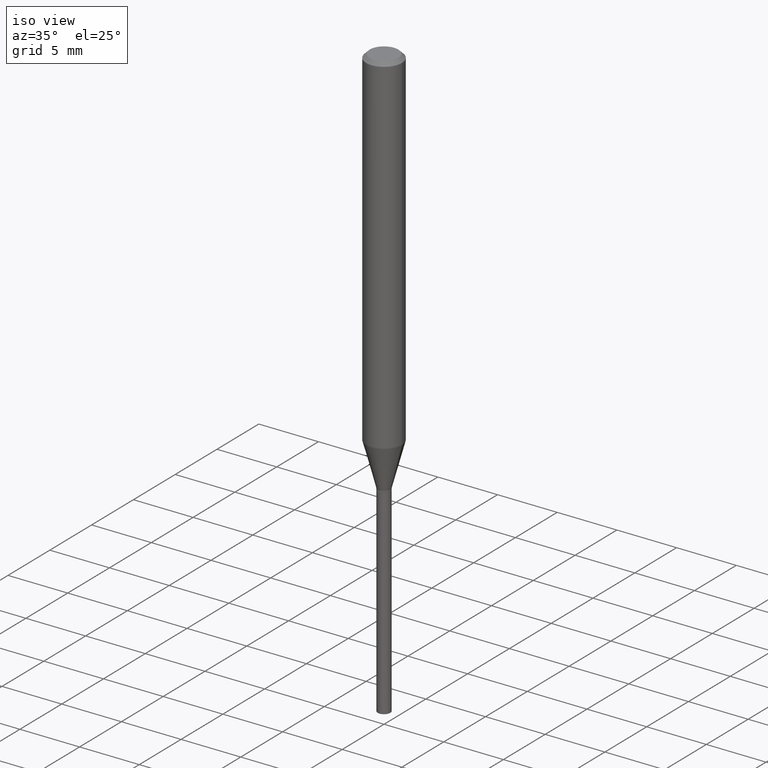
[diagram: clean part render]
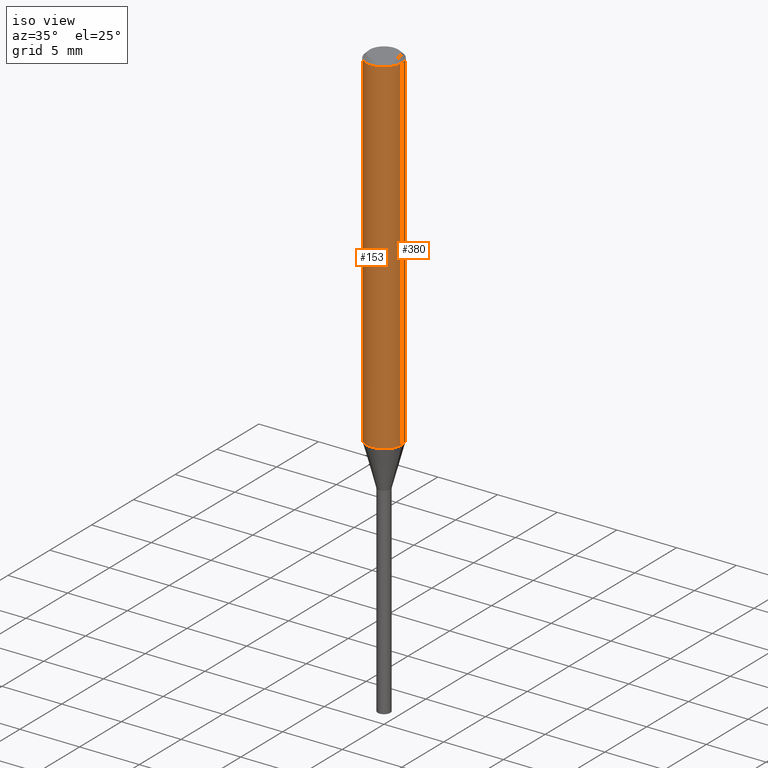
[diagram: same view with one multi-face feature highlighted, each face labeled with its STEP entity id]
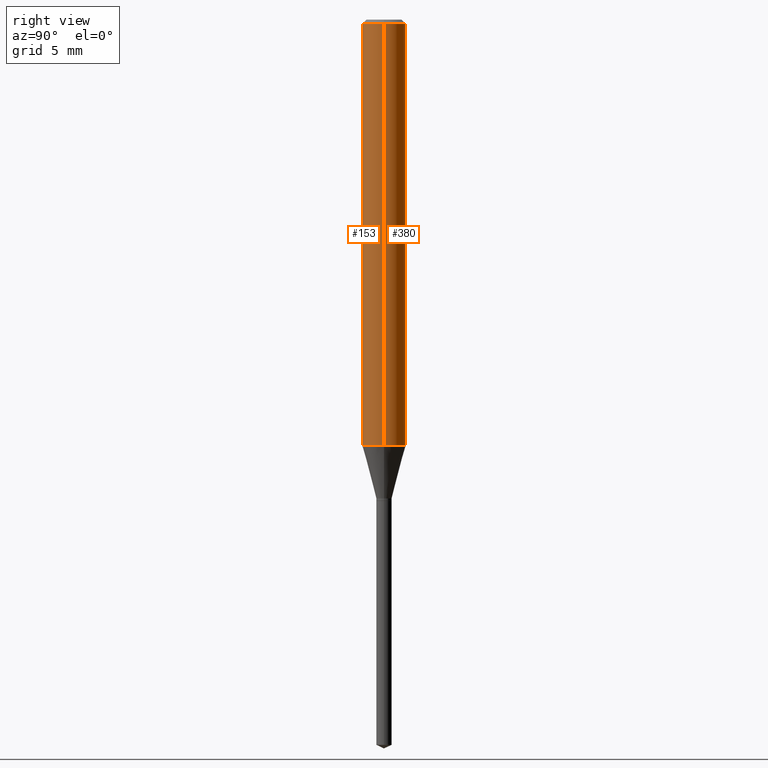
[diagram: same view with one multi-face feature highlighted, each face labeled with its STEP entity id]
A machine part, iso view. The highlighted faces form ONE feature: a constant-radius fillet chain: 2 tangent blend faces with common blend radius 1.4999 mm. The faces share edges in the B-rep.
A second angle (right view) of the same feature is appended — it is thin or edge-on in the first view.
Their STEP definitions:
[1] entity #380 (Cylinder):
#5 = AXIS2_PLACEMENT_3D ( 'NONE', #481, #12, #410 ) ;
#12 = DIRECTION ( 'NONE',  ( -2.445468806185136597E-29, 3.491481338843145583E-15, 1.000000000000000000 ) ) ;
#24 = CARTESIAN_POINT ( 'NONE',  ( -0.05905000000000006771, 4.195754854663396409E-16, -2.904631170795525045E-30 ) ) ;
#29 = VECTOR ( 'NONE', #340, 39.37007874015748143 ) ;
#32 = CIRCLE ( 'NONE', #309, 0.05904999999999999832 ) ;
#60 = CIRCLE ( 'NONE', #5, 0.05905000000000014404 ) ;
#81 = EDGE_CURVE ( 'NONE', #90, #438, #32, .T. ) ;
#90 = VERTEX_POINT ( 'NONE', #471 ) ;
#94 = EDGE_LOOP ( 'NONE', ( #374, #482, #128, #207 ) ) ;
#95 = DIRECTION ( 'NONE',  ( -2.445468806185136597E-29, 3.491481338843145583E-15, 1.000000000000000000 ) ) ;
#125 = DIRECTION ( 'NONE',  ( 1.000000000000000000, -6.982962677686266711E-15, 0.000000000000000000 ) ) ;
#128 = ORIENTED_EDGE ( 'NONE', *, *, #81, .F. ) ;
#140 = VERTEX_POINT ( 'NONE', #235 ) ;
#149 = DIRECTION ( 'NONE',  ( -2.445468806185136877E-29, 3.491481338843145188E-15, 1.000000000000000000 ) ) ;
#182 = EDGE_CURVE ( 'NONE', #140, #90, #244, .T. ) ;
#207 = ORIENTED_EDGE ( 'NONE', *, *, #182, .F. ) ;
#211 = EDGE_CURVE ( 'NONE', #363, #438, #426, .T. ) ;
#228 = FACE_OUTER_BOUND ( 'NONE', #94, .T. ) ;
#235 = CARTESIAN_POINT ( 'NONE',  ( 0.05905000000000015098, -4.428208245101720208E-15, -1.150189248989355040 ) ) ;
#241 = VECTOR ( 'NONE', #149, 39.37007874015748143 ) ;
#244 = LINE ( 'NONE', #389, #29 ) ;
#245 = DIRECTION ( 'NONE',  ( 1.000000000000000000, -6.982962677686266711E-15, 4.876176775795936353E-29 ) ) ;
#258 = CARTESIAN_POINT ( 'NONE',  ( 2.888098660104663328E-31, -4.123439461173779030E-17, -0.01181000000000006871 ) ) ;
#295 = CYLINDRICAL_SURFACE ( 'NONE', #401, 0.05905000000000006771 ) ;
#300 = DIRECTION ( 'NONE',  ( -2.445468806185136597E-29, 3.491481338843145583E-15, 1.000000000000000000 ) ) ;
#309 = AXIS2_PLACEMENT_3D ( 'NONE', #258, #300, #125 ) ;
#315 = CARTESIAN_POINT ( 'NONE',  ( -0.05905000000000015098, -3.596288813518005006E-15, -1.150189248989355040 ) ) ;
#340 = DIRECTION ( 'NONE',  ( -2.445468806185136877E-29, 3.491481338843145188E-15, 1.000000000000000000 ) ) ;
#363 = VERTEX_POINT ( 'NONE', #315 ) ;
#367 = EDGE_CURVE ( 'NONE', #140, #363, #60, .T. ) ;
#374 = ORIENTED_EDGE ( 'NONE', *, *, #367, .T. ) ;
#380 = ADVANCED_FACE ( 'NONE', ( #228 ), #295, .T. ) ;
#389 = CARTESIAN_POINT ( 'NONE',  ( 0.05905000000000006771, -4.123439461173745257E-16, 2.879382386107503723E-30 ) ) ;
#401 = AXIS2_PLACEMENT_3D ( 'NONE', #485, #95, #245 ) ;
#410 = DIRECTION ( 'NONE',  ( 1.000000000000000000, -6.982962677686272233E-15, 0.000000000000000000 ) ) ;
#426 = LINE ( 'NONE', #24, #241 ) ;
#438 = VERTEX_POINT ( 'NONE', #445 ) ;
#445 = CARTESIAN_POINT ( 'NONE',  ( -0.05904999999999999832, -1.608973861331701029E-15, -0.01181000000000006871 ) ) ;
#471 = CARTESIAN_POINT ( 'NONE',  ( 0.05904999999999999832, -4.535783407291118600E-16, -0.01181000000000006871 ) ) ;
#481 = CARTESIAN_POINT ( 'NONE',  ( 2.812751929612976794E-29, -4.015864298984345288E-15, -1.150189248989355040 ) ) ;
#482 = ORIENTED_EDGE ( 'NONE', *, *, #211, .T. ) ;
#485 = CARTESIAN_POINT ( 'NONE',  ( 0.000000000000000000, 0.000000000000000000, 0.000000000000000000 ) ) ;
[2] entity #153 (Cylinder):
#7 = DIRECTION ( 'NONE',  ( 1.000000000000000000, -6.982962677686266711E-15, 0.000000000000000000 ) ) ;
#8 = DIRECTION ( 'NONE',  ( 1.000000000000000000, -6.982962677686266711E-15, 4.876176775795936353E-29 ) ) ;
#10 = CARTESIAN_POINT ( 'NONE',  ( 2.888098660104663328E-31, -4.123439461173779030E-17, -0.01181000000000006871 ) ) ;
#24 = CARTESIAN_POINT ( 'NONE',  ( -0.05905000000000006771, 4.195754854663396409E-16, -2.904631170795525045E-30 ) ) ;
#29 = VECTOR ( 'NONE', #340, 39.37007874015748143 ) ;
#43 = CYLINDRICAL_SURFACE ( 'NONE', #77, 0.05905000000000006771 ) ;
#46 = ORIENTED_EDGE ( 'NONE', *, *, #224, .F. ) ;
#77 = AXIS2_PLACEMENT_3D ( 'NONE', #344, #195, #8 ) ;
#90 = VERTEX_POINT ( 'NONE', #471 ) ;
#91 = FACE_OUTER_BOUND ( 'NONE', #352, .T. ) ;
#101 = EDGE_CURVE ( 'NONE', #363, #140, #338, .T. ) ;
#140 = VERTEX_POINT ( 'NONE', #235 ) ;
#149 = DIRECTION ( 'NONE',  ( -2.445468806185136877E-29, 3.491481338843145188E-15, 1.000000000000000000 ) ) ;
#153 = ADVANCED_FACE ( 'NONE', ( #91 ), #43, .T. ) ;
#156 = DIRECTION ( 'NONE',  ( -2.445468806185136597E-29, 3.491481338843145583E-15, 1.000000000000000000 ) ) ;
#167 = AXIS2_PLACEMENT_3D ( 'NONE', #206, #469, #463 ) ;
#172 = ORIENTED_EDGE ( 'NONE', *, *, #182, .T. ) ;
#182 = EDGE_CURVE ( 'NONE', #140, #90, #244, .T. ) ;
#195 = DIRECTION ( 'NONE',  ( -2.445468806185136597E-29, 3.491481338843145583E-15, 1.000000000000000000 ) ) ;
#206 = CARTESIAN_POINT ( 'NONE',  ( 2.812751929612976794E-29, -4.015864298984345288E-15, -1.150189248989355040 ) ) ;
#211 = EDGE_CURVE ( 'NONE', #363, #438, #426, .T. ) ;
#224 = EDGE_CURVE ( 'NONE', #438, #90, #339, .T. ) ;
#235 = CARTESIAN_POINT ( 'NONE',  ( 0.05905000000000015098, -4.428208245101720208E-15, -1.150189248989355040 ) ) ;
#241 = VECTOR ( 'NONE', #149, 39.37007874015748143 ) ;
#244 = LINE ( 'NONE', #389, #29 ) ;
#288 = AXIS2_PLACEMENT_3D ( 'NONE', #10, #156, #7 ) ;
#315 = CARTESIAN_POINT ( 'NONE',  ( -0.05905000000000015098, -3.596288813518005006E-15, -1.150189248989355040 ) ) ;
#338 = CIRCLE ( 'NONE', #167, 0.05905000000000014404 ) ;
#339 = CIRCLE ( 'NONE', #288, 0.05904999999999999832 ) ;
#340 = DIRECTION ( 'NONE',  ( -2.445468806185136877E-29, 3.491481338843145188E-15, 1.000000000000000000 ) ) ;
#344 = CARTESIAN_POINT ( 'NONE',  ( 0.000000000000000000, 0.000000000000000000, 0.000000000000000000 ) ) ;
#352 = EDGE_LOOP ( 'NONE', ( #461, #447, #172, #46 ) ) ;
#363 = VERTEX_POINT ( 'NONE', #315 ) ;
#389 = CARTESIAN_POINT ( 'NONE',  ( 0.05905000000000006771, -4.123439461173745257E-16, 2.879382386107503723E-30 ) ) ;
#426 = LINE ( 'NONE', #24, #241 ) ;
#438 = VERTEX_POINT ( 'NONE', #445 ) ;
#445 = CARTESIAN_POINT ( 'NONE',  ( -0.05904999999999999832, -1.608973861331701029E-15, -0.01181000000000006871 ) ) ;
#447 = ORIENTED_EDGE ( 'NONE', *, *, #101, .T. ) ;
#461 = ORIENTED_EDGE ( 'NONE', *, *, #211, .F. ) ;
#463 = DIRECTION ( 'NONE',  ( 1.000000000000000000, -6.982962677686272233E-15, 0.000000000000000000 ) ) ;
#469 = DIRECTION ( 'NONE',  ( -2.445468806185136597E-29, 3.491481338843145583E-15, 1.000000000000000000 ) ) ;
#471 = CARTESIAN_POINT ( 'NONE',  ( 0.05904999999999999832, -4.535783407291118600E-16, -0.01181000000000006871 ) ) ;